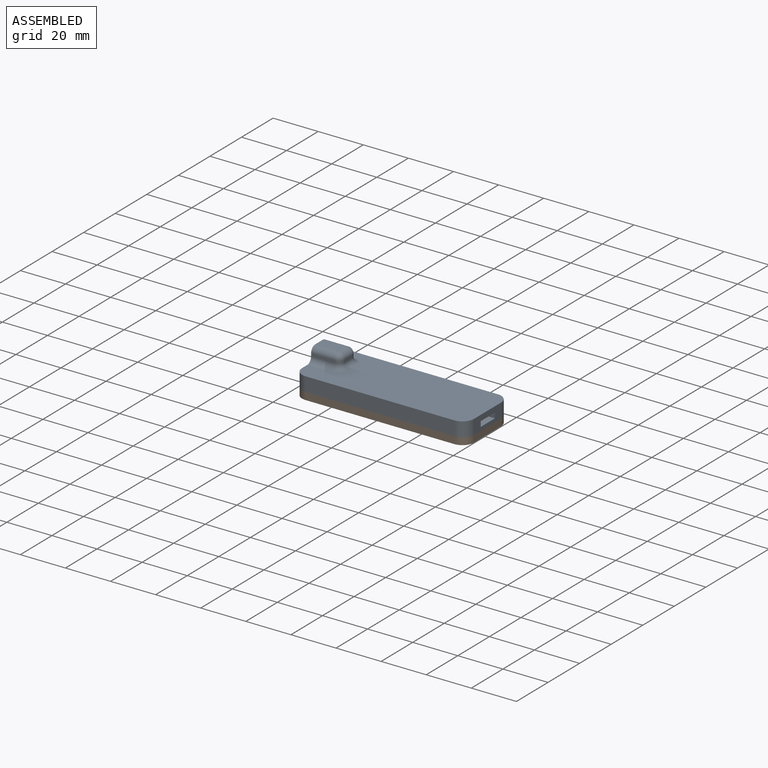
[diagram: assembled view]
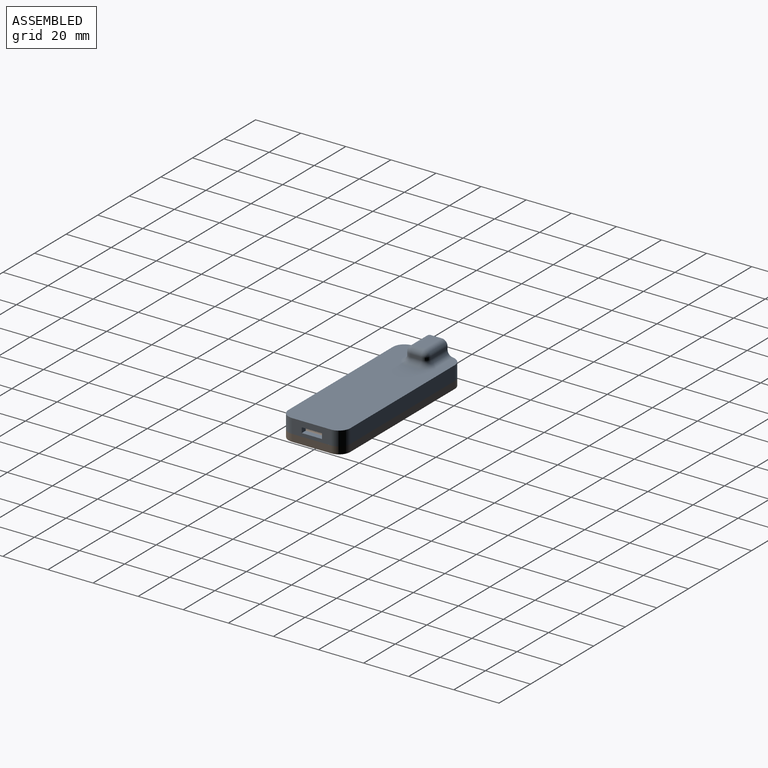
[diagram: assembled view, second angle]
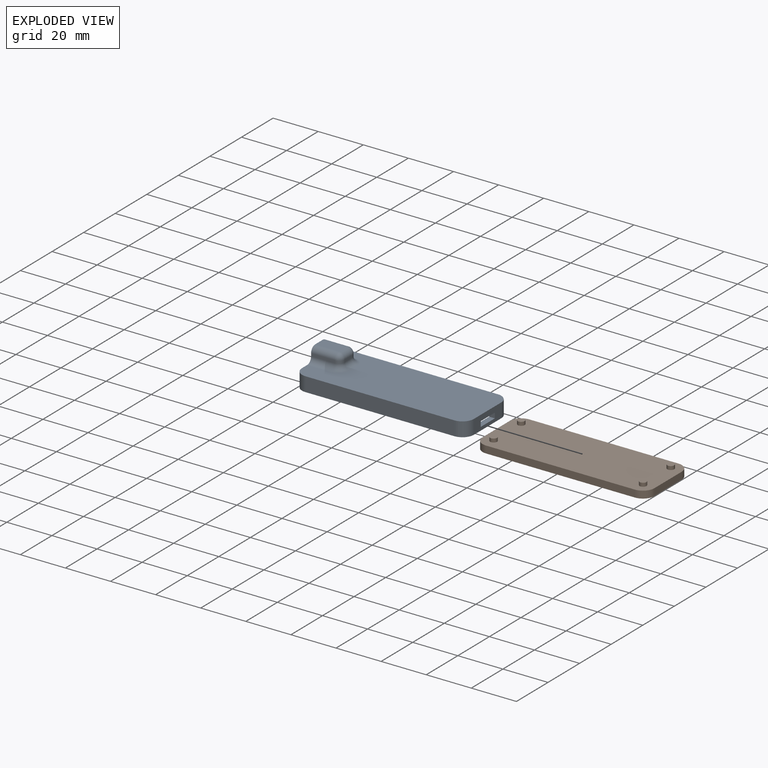
[diagram: exploded view]
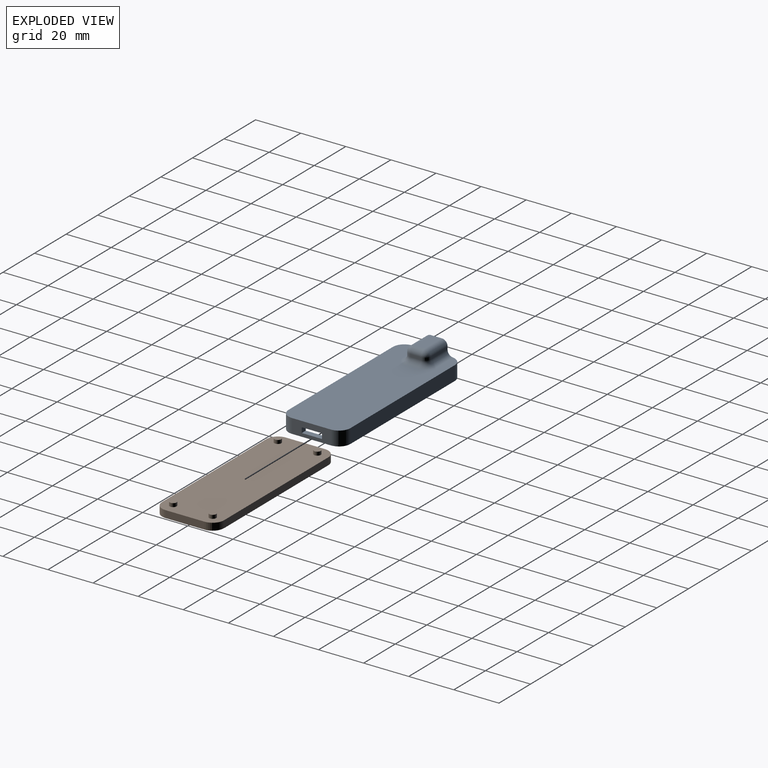
[diagram: exploded view, second angle]
ASSEMBLY  parts=2 mates=3
PART A: 47 faces, bbox 76.2x27.6x12.7 mm
  f0: plane 17.27x6.35mm, normal (1,0,0), area 89mm2, adj f2,f3,f37,f38,f43,f44,f45,f46
  f1: plane 22.35x3.81mm, normal (-1,0,0), area 64.4mm2, adj f2,f23,f25,f26,f44,f45,f46
  f2: plane 76.2x27.43mm, normal (0,0,-1), area 467.6mm2, adj f0,f1,f4,f5,f6,f24,f25,f26
  f3: plane 76.2x27.43mm, normal (0,0,1), area 1845.1mm2, adj f0,f4,f5,f6,f16,f18,f20,f21
  f4: plane 17.27x12.7mm, normal (-1,0,0), area 133.2mm2, adj f2,f3,f7,f8,f10,f11,f13,f16
  f5: plane 66.04x6.35mm, normal (0,-1,0), area 419.4mm2, adj f2,f3,f36,f37
  f6: plane 66.04x6.35mm, normal (0,1,0), area 419.4mm2, adj f2,f3,f38,f39
  f7: plane 10.53x1.27mm, normal (0,1,0), area 13.4mm2, adj f4,f11,f15,f16
  f8: plane 10.53x1.27mm, normal (0,-1,0), area 13.4mm2, adj f4,f13,f19,f22
  f9: plane 4.84x1.27mm, normal (1,0,0), area 6.1mm2, adj f14,f15,f19,f20
  f10: plane 10.53x4.84mm, normal (0,0,1), area 51mm2, adj f4,f11,f13,f14
  f11: cylinder r=2.54mm len=10.53mm, axis (1,0,0), area 42mm2, adj f4,f7,f10,f12
  f12: sphere r=2.54mm, area 6.5mm2, adj f11,f14,f15
  f13: cylinder r=2.54mm len=10.53mm, axis (-1,0,0), area 42mm2, adj f4,f8,f10,f17
  f14: cylinder r=2.54mm len=4.84mm, axis (0,-1,0), area 19.3mm2, adj f9,f10,f12,f17
  f15: cylinder r=2.54mm len=2.54mm, axis (0,0,-1), area 5.1mm2, adj f7,f9,f12,f18
  f16: cylinder r=2.54mm len=10.53mm, axis (-1,0,0), area 42mm2, adj f3,f4,f7,f18,f39
  f17: sphere r=2.54mm, area 10.1mm2, adj f13,f14,f19
  f18: torus R=5.08mm, axis (0,0,1), area 21.7mm2, adj f3,f15,f16,f20
  f19: cylinder r=2.54mm len=2.54mm, axis (0,0,1), area 5.1mm2, adj f8,f9,f17,f21
  f20: cylinder r=2.54mm len=4.84mm, axis (0,1,0), area 19.3mm2, adj f3,f9,f18,f21
  f21: torus R=5.08mm, axis (0,0,1), area 21.7mm2, adj f3,f19,f20,f22
  f22: cylinder r=2.54mm len=10.53mm, axis (1,0,0), area 42mm2, adj f3,f4,f8,f21
  f23: plane 71.13x22.36mm, normal (0,0,-1), area 1404.7mm2, adj f1,f24,f25,f26,f31,f32,f33,f34
  f24: plane 22.35x10.16mm, normal (1,0,0), area 87.5mm2, adj f2,f23,f25,f26,f27,f28,f30,f31
  f25: plane 71.12x3.81mm, normal (0,1,0), area 271mm2, adj f1,f2,f23,f24
  f26: plane 71.12x3.81mm, normal (0,-1,0), area 271mm2, adj f1,f2,f23,f24
  f27: plane 7.99x1.27mm, normal (0,-1,0), area 10.2mm2, adj f24,f29,f30,f31
  f28: plane 7.99x1.27mm, normal (0,1,0), area 10.2mm2, adj f24,f29,f30,f35
  f29: plane 4.84x1.27mm, normal (-1,0,0), area 6.1mm2, adj f27,f28,f30,f33
  f30: plane 7.99x4.84mm, normal (0,0,-1), area 38.7mm2, adj f24,f27,f28,f29
  f31: cylinder r=5.08mm len=7.99mm, axis (-1,0,0), area 63.8mm2, adj f23,f24,f27,f32
  f32: torus R=5.08mm, axis (0,0,1), area 17.1mm2, adj f23,f31,f33
  f33: cylinder r=5.08mm len=5.08mm, axis (0,1,0), area 38.6mm2, adj f23,f29,f32,f34
  f34: torus R=5.08mm, axis (0,0,1), area 35.2mm2, adj f23,f33,f35
  f35: cylinder r=5.08mm len=7.99mm, axis (1,0,0), area 63.8mm2, adj f23,f24,f28,f34
  f36: cylinder r=5.08mm len=6.35mm, axis (0,0,1), area 50.7mm2, adj f2,f3,f4,f5
  f37: cylinder r=5.08mm len=6.35mm, axis (0,0,-1), area 50.7mm2, adj f0,f2,f3,f5
  f38: cylinder r=5.08mm len=6.35mm, axis (0,0,1), area 50.7mm2, adj f0,f2,f3,f6
  f39: cylinder r=5.08mm len=6.51mm, axis (0,0,-1), area 50.7mm2, adj f2,f3,f4,f6,f16
  f40: plane 7.5x2.54mm, normal (0,1,0), area 19mm2, adj f2,f4,f24,f42
  f41: plane 7.5x2.54mm, normal (0,-1,0), area 19mm2, adj f2,f4,f24,f42
  f42: cylinder r=2.15mm len=4.3mm, axis (1,0,0), area 17.1mm2, adj f4,f24,f40,f41
  f43: plane 8.97x2.55mm, normal (0,0,-1), area 22.8mm2, adj f0,f23,f44,f46
  f44: plane 2.54x2.31mm, normal (0,1,0), area 5.9mm2, adj f0,f1,f43,f45
  f45: plane 8.97x2.54mm, normal (0,0,1), area 22.8mm2, adj f0,f1,f44,f46
  f46: plane 2.54x2.31mm, normal (0,-1,0), area 5.9mm2, adj f0,f1,f43,f45
PART B: 18 faces, bbox 76.2x27.4x4.8 mm
  f0: plane 17.27x3.18mm, normal (-1,0,0), area 54.8mm2, adj f4,f5,f14,f17
  f1: plane 66.04x3.18mm, normal (0,-1,0), area 209.7mm2, adj f4,f5,f14,f15
  f2: plane 17.27x3.18mm, normal (1,0,0), area 54.8mm2, adj f4,f5,f15,f16
  f3: plane 66.04x3.18mm, normal (0,1,0), area 209.7mm2, adj f4,f5,f16,f17
  f4: plane 76.2x27.43mm, normal (0,0,1), area 2039mm2, adj f0,f1,f2,f3,f6,f8,f10,f12
  f5: plane 76.2x27.43mm, normal (0,0,-1), area 2068.2mm2, adj f0,f1,f2,f3,f14,f15,f16,f17
  f6: cylinder r=1.52mm len=3.05mm, axis (0,0,-1), area 15.2mm2, adj f4,f7
  f7: plane 3.05x3.05mm, normal (0,0,1), area 7.3mm2, adj f6
  f8: cylinder r=1.52mm len=3.05mm, axis (0,0,-1), area 15.2mm2, adj f4,f9
  f9: plane 3.05x3.05mm, normal (0,0,1), area 7.3mm2, adj f8
  f10: cylinder r=1.52mm len=3.05mm, axis (0,0,-1), area 15.2mm2, adj f4,f11
  f11: plane 3.05x3.05mm, normal (0,0,1), area 7.3mm2, adj f10
  f12: cylinder r=1.52mm len=3.05mm, axis (0,0,-1), area 15.2mm2, adj f4,f13
  f13: plane 3.05x3.05mm, normal (0,0,1), area 7.3mm2, adj f12
  f14: cylinder r=5.08mm len=5.08mm, axis (0,0,1), area 25.3mm2, adj f0,f1,f4,f5
  f15: cylinder r=5.08mm len=5.08mm, axis (0,0,-1), area 25.3mm2, adj f1,f2,f4,f5
  f16: cylinder r=5.08mm len=5.08mm, axis (0,0,1), area 25.3mm2, adj f2,f3,f4,f5
  f17: cylinder r=5.08mm len=5.08mm, axis (0,0,-1), area 25.3mm2, adj f0,f3,f4,f5
PLACE A t=(5.12,26.06,9.92)mm
PLACE B t=(5.12,26.06,6.74)mm fixed
MATE planar B.f2 <-> A.f0  axis (1,0,0) through (81.32,39.78,8.33)mm
MATE planar B.f4 <-> A.f2  axis (0,0,1) through (43.22,39.78,9.92)mm
MATE planar B.f3 <-> A.f6  axis (0,1,0) through (43.22,53.5,8.33)mm
